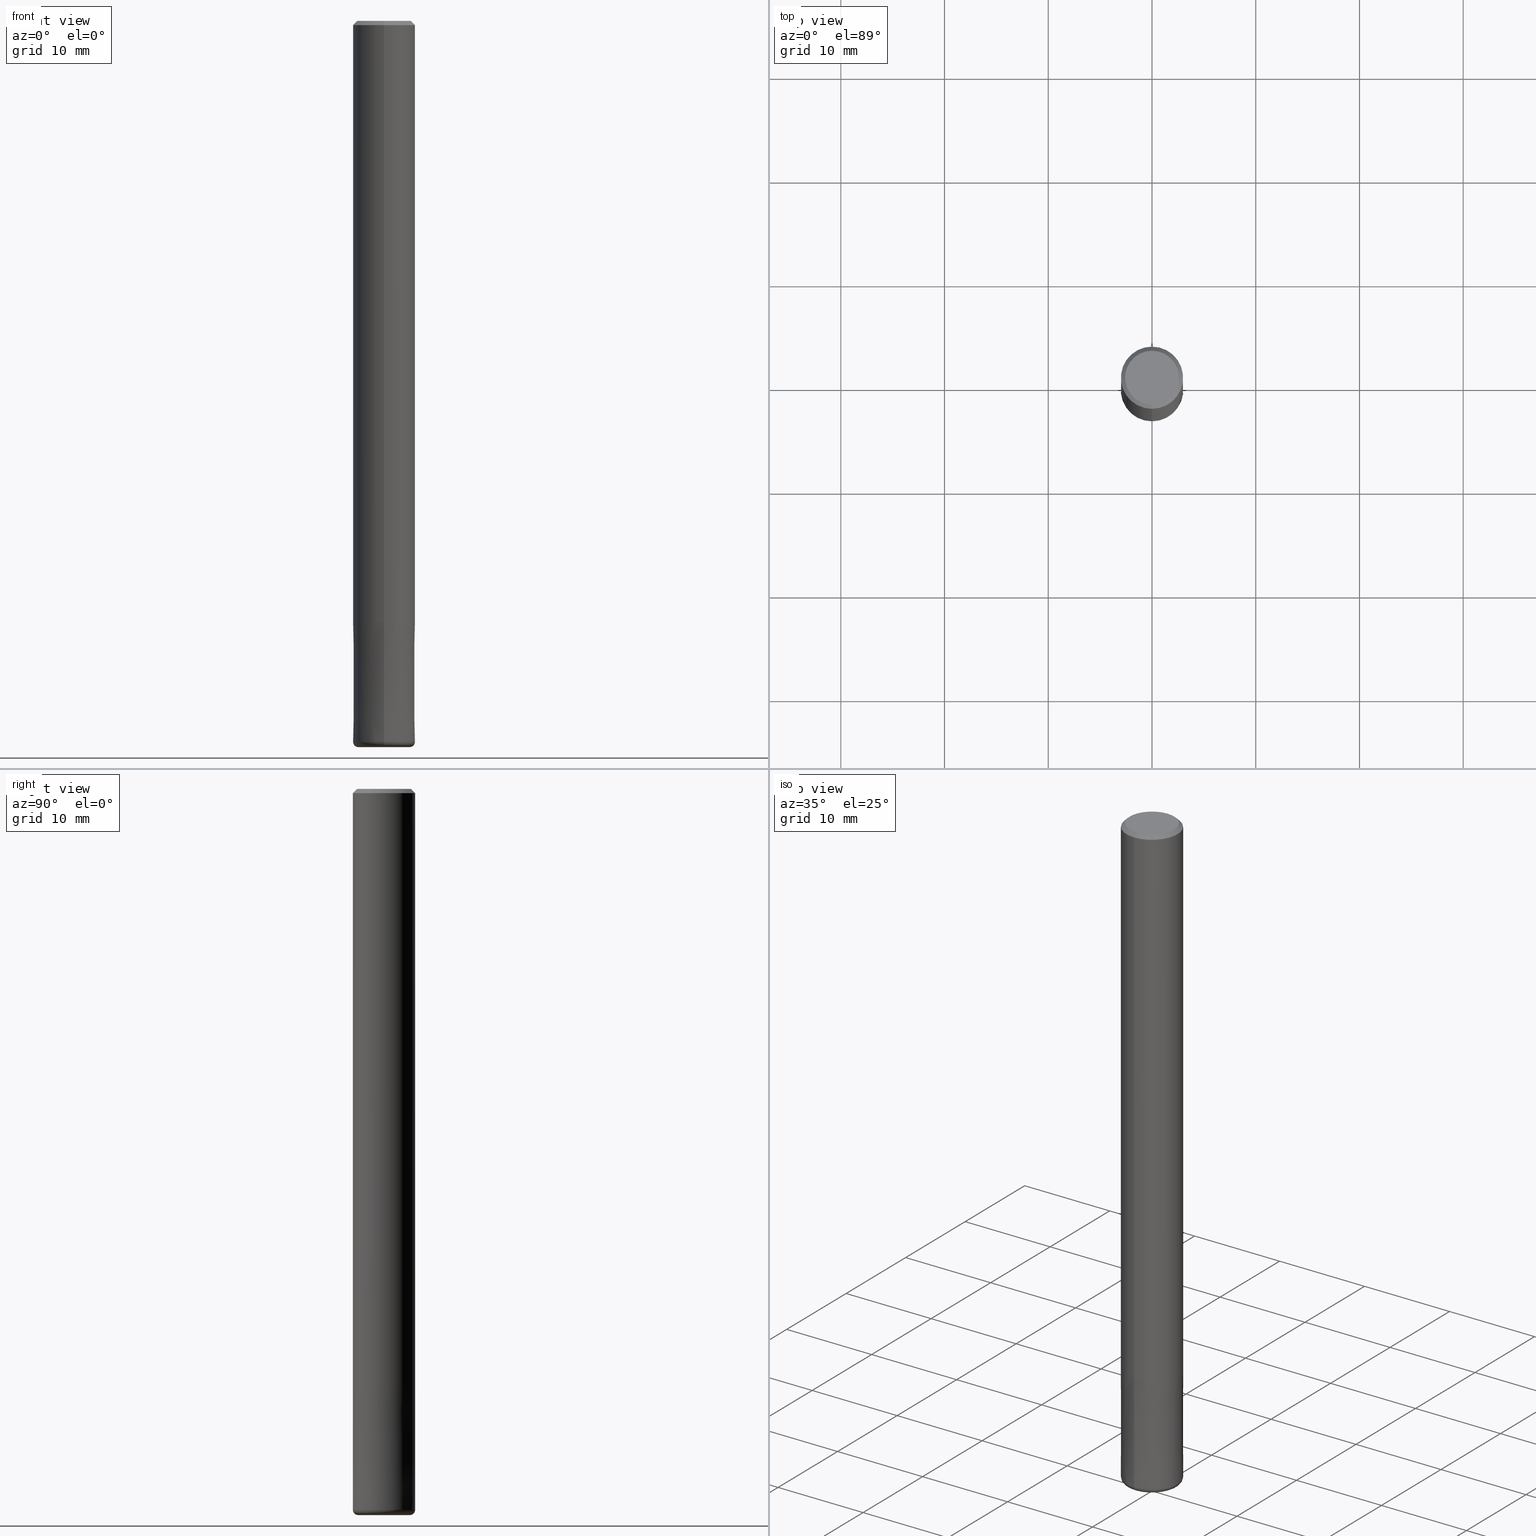
[diagram: canonical four-view strip — front | top / right | iso, engineering-drawing reading convention]
A machine part, canonical four-view strip (front | top / right | iso — engineering-drawing reading convention). The complete STEP part file that produces these views, byte-faithful:
ISO-10303-21;
HEADER;
FILE_DESCRIPTION(('no description'),'unknown implementation level');
FILE_NAME('CXRS5060-05-1200-Huellk.stp','  ',('CIMSOURCE GmbH'),('CADClick - KiM GmbH - www.kimweb.de'),'unknown preprocess','ACIS','unknown authorization');
FILE_SCHEMA(('automotive_design'));
ENDSEC;
DATA;
#1=MECHANICAL_DESIGN_GEOMETRIC_PRESENTATION_REPRESENTATION(' ',(#14,#15,#16,#17,#18,#19,#20,#21,#22,#23,#24,#25,#26,#27,#28,#29,#30,#31,#32,#33,#34,#35,#36,#37,#38,#39,#40,#41,#42,#43,#44,#45,#46,#47,#48,#49,#50,#51,#52,#53,#54,#55,#56,#57,#58,#59,#60,#61,#62,#63,#64,#65,#66,#67,#68,#69,#70,#71,#72,#73,#74,#75,#76,#77,#78,#79,#80,#81,#82,#83,#84),#10);
#2=PRODUCT_DEFINITION_CONTEXT('',#85,'design');
#3=APPLICATION_PROTOCOL_DEFINITION('INTERNATIONAL STANDARD','automotive_design',1994,#85);
#4=PRODUCT_CATEGORY_RELATIONSHIP('NONE','NONE',#86,#87);
#5=SHAPE_DEFINITION_REPRESENTATION(#88,#89);
#6=PRODUCT_DEFINITION_CONTEXT('',#90,'design');
#7=APPLICATION_PROTOCOL_DEFINITION('INTERNATIONAL STANDARD','automotive_design',1994,#90);
#8=PRODUCT_CATEGORY_RELATIONSHIP('NONE','NONE',#91,#92);
#9=SHAPE_DEFINITION_REPRESENTATION(#93,#94);
#10= (GEOMETRIC_REPRESENTATION_CONTEXT(3)GLOBAL_UNCERTAINTY_ASSIGNED_CONTEXT((#97))GLOBAL_UNIT_ASSIGNED_CONTEXT((#99,#100,#101))REPRESENTATION_CONTEXT('NONE','WORKSPACE'));
#14=STYLED_ITEM('',(#103),#104);
#15=STYLED_ITEM('',(#105),#106);
#16=STYLED_ITEM('',(#107),#108);
#17=STYLED_ITEM('',(#109),#110);
#18=STYLED_ITEM('',(#111),#112);
#19=STYLED_ITEM('',(#113),#114);
#20=STYLED_ITEM('',(#115),#116);
#21=STYLED_ITEM('',(#117),#118);
#22=STYLED_ITEM('',(#119),#120);
#23=STYLED_ITEM('',(#121),#122);
#24=STYLED_ITEM('',(#123),#124);
#25=STYLED_ITEM('',(#125),#126);
#26=STYLED_ITEM('',(#127),#128);
#27=STYLED_ITEM('',(#129),#130);
#28=STYLED_ITEM('',(#131),#132);
#29=STYLED_ITEM('',(#133),#134);
#30=STYLED_ITEM('',(#135),#136);
#31=STYLED_ITEM('',(#137),#138);
#32=STYLED_ITEM('',(#139),#140);
#33=STYLED_ITEM('',(#141),#142);
#34=STYLED_ITEM('',(#143),#144);
#35=STYLED_ITEM('',(#145),#146);
#36=STYLED_ITEM('',(#147),#148);
#37=STYLED_ITEM('',(#149),#150);
#38=STYLED_ITEM('',(#151),#152);
#39=STYLED_ITEM('',(#153),#154);
#40=STYLED_ITEM('',(#155),#156);
#41=STYLED_ITEM('',(#157),#158);
#42=STYLED_ITEM('',(#159),#160);
#43=STYLED_ITEM('',(#161),#162);
#44=STYLED_ITEM('',(#163),#164);
#45=STYLED_ITEM('',(#165),#166);
#46=STYLED_ITEM('',(#167),#168);
#47=STYLED_ITEM('',(#169),#170);
#48=STYLED_ITEM('',(#171),#172);
#49=STYLED_ITEM('',(#173),#174);
#50=STYLED_ITEM('',(#175),#176);
#51=STYLED_ITEM('',(#177),#178);
#52=STYLED_ITEM('',(#179),#180);
#53=STYLED_ITEM('',(#181),#182);
#54=STYLED_ITEM('',(#183),#184);
#55=STYLED_ITEM('',(#185),#186);
#56=STYLED_ITEM('',(#187),#188);
#57=STYLED_ITEM('',(#189),#190);
#58=STYLED_ITEM('',(#191),#192);
#59=STYLED_ITEM('',(#193),#194);
#60=STYLED_ITEM('',(#195),#196);
#61=STYLED_ITEM('',(#197),#198);
#62=STYLED_ITEM('',(#199),#200);
#63=STYLED_ITEM('',(#201),#202);
#64=STYLED_ITEM('',(#203),#204);
#65=STYLED_ITEM('',(#205),#206);
#66=STYLED_ITEM('',(#207),#208);
#67=STYLED_ITEM('',(#209),#210);
#68=STYLED_ITEM('',(#211),#212);
#69=STYLED_ITEM('',(#213),#214);
#70=STYLED_ITEM('',(#215),#216);
#71=STYLED_ITEM('',(#217),#218);
#72=STYLED_ITEM('',(#219),#220);
#73=STYLED_ITEM('',(#221),#222);
#74=STYLED_ITEM('',(#223),#224);
#75=STYLED_ITEM('',(#225),#226);
#76=STYLED_ITEM('',(#227),#228);
#77=STYLED_ITEM('',(#229),#230);
#78=STYLED_ITEM('',(#231),#232);
#79=STYLED_ITEM('',(#233),#234);
#80=STYLED_ITEM('',(#235),#236);
#81=STYLED_ITEM('',(#237),#238);
#82=STYLED_ITEM('',(#239),#240);
#83=STYLED_ITEM('',(#241),#242);
#84=STYLED_ITEM('',(#243),#244);
#85=APPLICATION_CONTEXT(' ');
#86=PRODUCT_CATEGORY('part','NONE');
#87=PRODUCT_RELATED_PRODUCT_CATEGORY('detail',' ',(#245));
#88=PRODUCT_DEFINITION_SHAPE('NONE','NONE',#246);
#89=ADVANCED_BREP_SHAPE_REPRESENTATION('1',(#196,#247),#10);
#90=APPLICATION_CONTEXT(' ');
#91=PRODUCT_CATEGORY('part','NONE');
#92=PRODUCT_RELATED_PRODUCT_CATEGORY('detail',' ',(#248));
#93=PRODUCT_DEFINITION_SHAPE('NONE','NONE',#249);
#94=ADVANCED_BREP_SHAPE_REPRESENTATION('2',(#110,#250),#10);
#97=UNCERTAINTY_MEASURE_WITH_UNIT(LENGTH_MEASURE(1.0E-006),#99,'','');
#99= (CONVERSION_BASED_UNIT('MILLIMETRE',#253)LENGTH_UNIT()NAMED_UNIT(#256));
#100= (NAMED_UNIT(#258)PLANE_ANGLE_UNIT()SI_UNIT($,.RADIAN.));
#101= (NAMED_UNIT(#258)SOLID_ANGLE_UNIT()SI_UNIT($,.STERADIAN.));
#103=PRESENTATION_STYLE_ASSIGNMENT((#264));
#104=ADVANCED_FACE('',(#265),#266,.F.);
#105=PRESENTATION_STYLE_ASSIGNMENT((#267));
#106=EDGE_CURVE('',#184,#206,#268,.T.);
#107=PRESENTATION_STYLE_ASSIGNMENT((#269));
#108=ADVANCED_FACE('',(#270),#271,.F.);
#109=PRESENTATION_STYLE_ASSIGNMENT((#272));
#110=MANIFOLD_SOLID_BREP('2',#273);
#111=PRESENTATION_STYLE_ASSIGNMENT((#274));
#112=EDGE_CURVE('',#198,#244,#275,.T.);
#113=PRESENTATION_STYLE_ASSIGNMENT((#276));
#114=EDGE_CURVE('',#188,#168,#277,.T.);
#115=PRESENTATION_STYLE_ASSIGNMENT((#278));
#116=ADVANCED_FACE('',(#279),#280,.T.);
#117=PRESENTATION_STYLE_ASSIGNMENT((#281));
#118=ADVANCED_FACE('',(#282),#283,.T.);
#119=PRESENTATION_STYLE_ASSIGNMENT((#284));
#120=ADVANCED_FACE('',(#285,#286),#287,.T.);
#121=PRESENTATION_STYLE_ASSIGNMENT((#288));
#122=EDGE_CURVE('',#138,#158,#289,.T.);
#123=PRESENTATION_STYLE_ASSIGNMENT((#290));
#124=VERTEX_POINT('',#291);
#125=PRESENTATION_STYLE_ASSIGNMENT((#292));
#126=EDGE_CURVE('',#158,#138,#293,.T.);
#127=PRESENTATION_STYLE_ASSIGNMENT((#294));
#128=EDGE_CURVE('',#206,#198,#295,.T.);
#129=PRESENTATION_STYLE_ASSIGNMENT((#296));
#130=ADVANCED_FACE('',(#297),#298,.T.);
#131=PRESENTATION_STYLE_ASSIGNMENT((#299));
#132=VERTEX_POINT('',#300);
#133=PRESENTATION_STYLE_ASSIGNMENT((#301));
#134=EDGE_CURVE('',#218,#200,#302,.T.);
#135=PRESENTATION_STYLE_ASSIGNMENT((#303));
#136=EDGE_CURVE('',#200,#204,#304,.T.);
#137=PRESENTATION_STYLE_ASSIGNMENT((#305));
#138=VERTEX_POINT('',#306);
#139=PRESENTATION_STYLE_ASSIGNMENT((#307));
#140=VERTEX_POINT('',#308);
#141=PRESENTATION_STYLE_ASSIGNMENT((#309));
#142=VERTEX_POINT('',#310);
#143=PRESENTATION_STYLE_ASSIGNMENT((#311));
#144=EDGE_CURVE('',#124,#208,#312,.T.);
#145=PRESENTATION_STYLE_ASSIGNMENT((#313));
#146=EDGE_CURVE('',#242,#218,#314,.T.);
#147=PRESENTATION_STYLE_ASSIGNMENT((#315));
#148=ADVANCED_FACE('',(#316),#317,.T.);
#149=PRESENTATION_STYLE_ASSIGNMENT((#318));
#150=EDGE_CURVE('',#168,#124,#319,.T.);
#151=PRESENTATION_STYLE_ASSIGNMENT((#320));
#152=EDGE_CURVE('',#184,#222,#321,.T.);
#153=PRESENTATION_STYLE_ASSIGNMENT((#322));
#154=ADVANCED_FACE('',(#323),#324,.T.);
#155=PRESENTATION_STYLE_ASSIGNMENT((#325));
#156=EDGE_CURVE('',#244,#184,#326,.T.);
#157=PRESENTATION_STYLE_ASSIGNMENT((#327));
#158=VERTEX_POINT('',#328);
#159=PRESENTATION_STYLE_ASSIGNMENT((#329));
#160=EDGE_CURVE('',#222,#190,#330,.T.);
#161=PRESENTATION_STYLE_ASSIGNMENT((#331));
#162=EDGE_CURVE('',#138,#140,#332,.T.);
#163=PRESENTATION_STYLE_ASSIGNMENT((#333));
#164=ADVANCED_FACE('',(#334),#335,.T.);
#165=PRESENTATION_STYLE_ASSIGNMENT((#336));
#166=ADVANCED_FACE('',(#337),#338,.T.);
#167=PRESENTATION_STYLE_ASSIGNMENT((#339));
#168=VERTEX_POINT('',#340);
#169=PRESENTATION_STYLE_ASSIGNMENT((#341));
#170=EDGE_CURVE('',#132,#158,#342,.T.);
#171=PRESENTATION_STYLE_ASSIGNMENT((#343));
#172=ADVANCED_FACE('',(#344),#345,.T.);
#173=PRESENTATION_STYLE_ASSIGNMENT((#346));
#174=EDGE_CURVE('',#142,#124,#347,.T.);
#175=PRESENTATION_STYLE_ASSIGNMENT((#348));
#176=EDGE_CURVE('',#140,#132,#349,.T.);
#177=PRESENTATION_STYLE_ASSIGNMENT((#350));
#178=VERTEX_POINT('',#351);
#179=PRESENTATION_STYLE_ASSIGNMENT((#352));
#180=ADVANCED_FACE('',(#353),#354,.T.);
#181=PRESENTATION_STYLE_ASSIGNMENT((#355));
#182=EDGE_CURVE('',#178,#142,#356,.T.);
#183=PRESENTATION_STYLE_ASSIGNMENT((#357));
#184=VERTEX_POINT('',#358);
#185=PRESENTATION_STYLE_ASSIGNMENT((#359));
#186=EDGE_CURVE('',#190,#244,#360,.T.);
#187=PRESENTATION_STYLE_ASSIGNMENT((#361));
#188=VERTEX_POINT('',#362);
#189=PRESENTATION_STYLE_ASSIGNMENT((#363));
#190=VERTEX_POINT('',#364);
#191=PRESENTATION_STYLE_ASSIGNMENT((#365));
#192=ADVANCED_FACE('',(#366),#367,.T.);
#193=PRESENTATION_STYLE_ASSIGNMENT((#368));
#194=EDGE_CURVE('',#200,#218,#369,.T.);
#195=PRESENTATION_STYLE_ASSIGNMENT((#370));
#196=MANIFOLD_SOLID_BREP('1',#371);
#197=PRESENTATION_STYLE_ASSIGNMENT((#372));
#198=VERTEX_POINT('',#373);
#199=PRESENTATION_STYLE_ASSIGNMENT((#374));
#200=VERTEX_POINT('',#375);
#201=PRESENTATION_STYLE_ASSIGNMENT((#376));
#202=EDGE_CURVE('',#184,#244,#377,.T.);
#203=PRESENTATION_STYLE_ASSIGNMENT((#378));
#204=VERTEX_POINT('',#379);
#205=PRESENTATION_STYLE_ASSIGNMENT((#380));
#206=VERTEX_POINT('',#381);
#207=PRESENTATION_STYLE_ASSIGNMENT((#382));
#208=VERTEX_POINT('',#383);
#209=PRESENTATION_STYLE_ASSIGNMENT((#384));
#210=ADVANCED_FACE('',(#385,#386),#387,.T.);
#211=PRESENTATION_STYLE_ASSIGNMENT((#388));
#212=EDGE_CURVE('',#208,#178,#389,.T.);
#213=PRESENTATION_STYLE_ASSIGNMENT((#390));
#214=EDGE_CURVE('',#198,#206,#391,.T.);
#215=PRESENTATION_STYLE_ASSIGNMENT((#392));
#216=EDGE_CURVE('',#132,#140,#393,.T.);
#217=PRESENTATION_STYLE_ASSIGNMENT((#394));
#218=VERTEX_POINT('',#395);
#219=PRESENTATION_STYLE_ASSIGNMENT((#396));
#220=ADVANCED_FACE('',(#397),#398,.T.);
#221=PRESENTATION_STYLE_ASSIGNMENT((#399));
#222=VERTEX_POINT('',#400);
#223=PRESENTATION_STYLE_ASSIGNMENT((#401));
#224=EDGE_CURVE('',#142,#188,#402,.T.);
#225=PRESENTATION_STYLE_ASSIGNMENT((#403));
#226=ADVANCED_FACE('',(#404,#405),#406,.T.);
#227=PRESENTATION_STYLE_ASSIGNMENT((#407));
#228=EDGE_CURVE('',#190,#222,#408,.T.);
#229=PRESENTATION_STYLE_ASSIGNMENT((#409));
#230=EDGE_CURVE('',#242,#204,#410,.T.);
#231=PRESENTATION_STYLE_ASSIGNMENT((#411));
#232=EDGE_CURVE('',#178,#208,#412,.T.);
#233=PRESENTATION_STYLE_ASSIGNMENT((#413));
#234=ADVANCED_FACE('',(#414),#415,.T.);
#235=PRESENTATION_STYLE_ASSIGNMENT((#416));
#236=EDGE_CURVE('',#124,#142,#417,.T.);
#237=PRESENTATION_STYLE_ASSIGNMENT((#418));
#238=EDGE_CURVE('',#168,#188,#419,.T.);
#239=PRESENTATION_STYLE_ASSIGNMENT((#420));
#240=EDGE_CURVE('',#204,#242,#421,.T.);
#241=PRESENTATION_STYLE_ASSIGNMENT((#422));
#242=VERTEX_POINT('',#423);
#243=PRESENTATION_STYLE_ASSIGNMENT((#424));
#244=VERTEX_POINT('',#425);
#245=PRODUCT('1','1','PART-1-DESC',(#426));
#246=PRODUCT_DEFINITION('NONE','NONE',#427,#2);
#247=AXIS2_PLACEMENT_3D('',#428,#429,#430);
#248=PRODUCT('2','2','PART-2-DESC',(#431));
#249=PRODUCT_DEFINITION('NONE','NONE',#432,#6);
#250=AXIS2_PLACEMENT_3D('',#433,#434,#435);
#253=LENGTH_MEASURE_WITH_UNIT(LENGTH_MEASURE(1.0),#436);
#256=DIMENSIONAL_EXPONENTS(1.0,0.0,0.0,0.0,0.0,0.0,0.0);
#258=DIMENSIONAL_EXPONENTS(0.0,0.0,0.0,0.0,0.0,0.0,0.0);
#264=SURFACE_STYLE_USAGE(.BOTH.,#437);
#265=FACE_OUTER_BOUND('',#438,.T.);
#266=CYLINDRICAL_SURFACE('',#439,1.35);
#267=CURVE_STYLE('',#440,POSITIVE_LENGTH_MEASURE(1.0E-006),#441);
#268=LINE('',#442,#443);
#269=SURFACE_STYLE_USAGE(.BOTH.,#444);
#270=FACE_OUTER_BOUND('',#445,.T.);
#271=CYLINDRICAL_SURFACE('',#446,1.35);
#272=SURFACE_STYLE_USAGE(.BOTH.,#447);
#273=CLOSED_SHELL('',(#104,#172,#234,#226,#180,#116,#120,#108));
#274=CURVE_STYLE('',#448,POSITIVE_LENGTH_MEASURE(1.0E-006),#449);
#275=LINE('',#450,#451);
#276=CURVE_STYLE('',#452,POSITIVE_LENGTH_MEASURE(1.0E-006),#453);
#277=CIRCLE('',#454,2.6);
#278=SURFACE_STYLE_USAGE(.BOTH.,#455);
#279=FACE_OUTER_BOUND('',#456,.T.);
#280=TOROIDAL_SURFACE('',#457,2.5,0.499999999999995);
#281=SURFACE_STYLE_USAGE(.BOTH.,#458);
#282=FACE_OUTER_BOUND('',#459,.T.);
#283=CYLINDRICAL_SURFACE('',#460,3.0);
#284=SURFACE_STYLE_USAGE(.BOTH.,#461);
#285=FACE_BOUND('',#462,.T.);
#286=FACE_OUTER_BOUND('',#463,.T.);
#287=PLANE('',#464);
#288=CURVE_STYLE('',#465,POSITIVE_LENGTH_MEASURE(1.0E-006),#466);
#289=CIRCLE('',#467,1.35);
#290=POINT_STYLE(' ',#468,POSITIVE_LENGTH_MEASURE(1.0E-006),#469);
#291=CARTESIAN_POINT('',(0.0,3.0,-0.399999999999999));
#292=CURVE_STYLE('',#470,POSITIVE_LENGTH_MEASURE(1.0E-006),#471);
#293=CIRCLE('',#472,1.35);
#294=CURVE_STYLE('',#473,POSITIVE_LENGTH_MEASURE(1.0E-006),#474);
#295=CIRCLE('',#475,2.9999);
#296=SURFACE_STYLE_USAGE(.BOTH.,#476);
#297=FACE_OUTER_BOUND('',#477,.T.);
#298=CYLINDRICAL_SURFACE('',#478,1.35);
#299=POINT_STYLE(' ',#479,POSITIVE_LENGTH_MEASURE(1.0E-006),#480);
#300=CARTESIAN_POINT('',(0.0,1.35,-58.0));
#301=CURVE_STYLE('',#481,POSITIVE_LENGTH_MEASURE(1.0E-006),#482);
#302=CIRCLE('',#483,1.35);
#303=CURVE_STYLE('',#484,POSITIVE_LENGTH_MEASURE(1.0E-006),#485);
#304=LINE('',#486,#487);
#305=POINT_STYLE(' ',#488,POSITIVE_LENGTH_MEASURE(1.0E-006),#489);
#306=CARTESIAN_POINT('',(1.65321857766021E-016,-1.35,-70.0));
#307=POINT_STYLE(' ',#490,POSITIVE_LENGTH_MEASURE(1.0E-006),#491);
#308=CARTESIAN_POINT('',(1.65321857766021E-016,-1.35,-58.0));
#309=POINT_STYLE(' ',#492,POSITIVE_LENGTH_MEASURE(1.0E-006),#493);
#310=CARTESIAN_POINT('',(3.67381906146713E-016,-3.0,-0.399999999999999));
#311=CURVE_STYLE('',#494,POSITIVE_LENGTH_MEASURE(1.0E-006),#495);
#312=LINE('',#496,#497);
#313=CURVE_STYLE('',#498,POSITIVE_LENGTH_MEASURE(1.0E-006),#499);
#314=LINE('',#500,#501);
#315=SURFACE_STYLE_USAGE(.BOTH.,#502);
#316=FACE_OUTER_BOUND('',#503,.T.);
#317=CYLINDRICAL_SURFACE('',#504,1.35);
#318=CURVE_STYLE('',#505,POSITIVE_LENGTH_MEASURE(1.0E-006),#506);
#319=LINE('',#507,#508);
#320=CURVE_STYLE('',#509,POSITIVE_LENGTH_MEASURE(1.0E-006),#510);
#321=CIRCLE('',#511,0.499999999999995);
#322=SURFACE_STYLE_USAGE(.BOTH.,#512);
#323=FACE_OUTER_BOUND('',#513,.T.);
#324=CYLINDRICAL_SURFACE('',#514,3.0);
#325=CURVE_STYLE('',#515,POSITIVE_LENGTH_MEASURE(1.0E-006),#516);
#326=CIRCLE('',#517,3.0);
#327=POINT_STYLE(' ',#518,POSITIVE_LENGTH_MEASURE(1.0E-006),#519);
#328=CARTESIAN_POINT('',(0.0,1.35,-70.0));
#329=CURVE_STYLE('',#520,POSITIVE_LENGTH_MEASURE(1.0E-006),#521);
#330=CIRCLE('',#522,2.5);
#331=CURVE_STYLE('',#523,POSITIVE_LENGTH_MEASURE(1.0E-006),#524);
#332=LINE('',#525,#526);
#333=SURFACE_STYLE_USAGE(.BOTH.,#527);
#334=FACE_OUTER_BOUND('',#528,.T.);
#335=PLANE('',#529);
#336=SURFACE_STYLE_USAGE(.BOTH.,#530);
#337=FACE_OUTER_BOUND('',#531,.T.);
#338=CONICAL_SURFACE('',#532,2.8,0.78539816339745);
#339=POINT_STYLE(' ',#533,POSITIVE_LENGTH_MEASURE(1.0E-006),#534);
#340=CARTESIAN_POINT('',(0.0,2.6,0.0));
#341=CURVE_STYLE('',#535,POSITIVE_LENGTH_MEASURE(1.0E-006),#536);
#342=LINE('',#537,#538);
#343=SURFACE_STYLE_USAGE(.BOTH.,#539);
#344=FACE_OUTER_BOUND('',#540,.T.);
#345=TOROIDAL_SURFACE('',#541,2.5,0.499999999999995);
#346=CURVE_STYLE('',#542,POSITIVE_LENGTH_MEASURE(1.0E-006),#543);
#347=CIRCLE('',#544,3.0);
#348=CURVE_STYLE('',#545,POSITIVE_LENGTH_MEASURE(1.0E-006),#546);
#349=CIRCLE('',#547,1.35);
#350=POINT_STYLE(' ',#548,POSITIVE_LENGTH_MEASURE(1.0E-006),#549);
#351=CARTESIAN_POINT('',(3.67381906146713E-016,-3.0,-58.0));
#352=SURFACE_STYLE_USAGE(.BOTH.,#550);
#353=FACE_OUTER_BOUND('',#551,.T.);
#354=CONICAL_SURFACE('',#552,2.99995,8.69565217371222E-006);
#355=CURVE_STYLE('',#553,POSITIVE_LENGTH_MEASURE(1.0E-006),#554);
#356=LINE('',#555,#556);
#357=POINT_STYLE(' ',#557,POSITIVE_LENGTH_MEASURE(1.0E-006),#558);
#358=CARTESIAN_POINT('',(3.67381906146713E-016,-3.0,-69.5));
#359=CURVE_STYLE('',#559,POSITIVE_LENGTH_MEASURE(1.0E-006),#560);
#360=CIRCLE('',#561,0.499999999999995);
#361=POINT_STYLE(' ',#562,POSITIVE_LENGTH_MEASURE(1.0E-006),#563);
#362=CARTESIAN_POINT('',(3.18397651993818E-016,-2.6,0.0));
#363=POINT_STYLE(' ',#564,POSITIVE_LENGTH_MEASURE(1.0E-006),#565);
#364=CARTESIAN_POINT('',(0.0,2.5,-70.0));
#365=SURFACE_STYLE_USAGE(.BOTH.,#566);
#366=FACE_OUTER_BOUND('',#567,.T.);
#367=PLANE('',#568);
#368=CURVE_STYLE('',#569,POSITIVE_LENGTH_MEASURE(1.0E-006),#570);
#369=CIRCLE('',#571,1.35);
#370=SURFACE_STYLE_USAGE(.BOTH.,#572);
#371=CLOSED_SHELL('',(#130,#154,#220,#210,#164,#166,#118,#148,#192));
#372=POINT_STYLE(' ',#573,POSITIVE_LENGTH_MEASURE(1.0E-006),#574);
#373=CARTESIAN_POINT('',(0.0,2.9999,-58.0));
#374=POINT_STYLE(' ',#575,POSITIVE_LENGTH_MEASURE(1.0E-006),#576);
#375=CARTESIAN_POINT('',(1.65321857766021E-016,-1.35,-69.9));
#376=CURVE_STYLE('',#577,POSITIVE_LENGTH_MEASURE(1.0E-006),#578);
#377=CIRCLE('',#579,3.0);
#378=POINT_STYLE(' ',#580,POSITIVE_LENGTH_MEASURE(1.0E-006),#581);
#379=CARTESIAN_POINT('',(1.65321857766021E-016,-1.35,-58.0));
#380=POINT_STYLE(' ',#582,POSITIVE_LENGTH_MEASURE(1.0E-006),#583);
#381=CARTESIAN_POINT('',(3.67369660083175E-016,-2.9999,-58.0));
#382=POINT_STYLE(' ',#584,POSITIVE_LENGTH_MEASURE(1.0E-006),#585);
#383=CARTESIAN_POINT('',(0.0,3.0,-58.0));
#384=SURFACE_STYLE_USAGE(.BOTH.,#586);
#385=FACE_OUTER_BOUND('',#587,.T.);
#386=FACE_BOUND('',#588,.T.);
#387=PLANE('',#589);
#388=CURVE_STYLE('',#590,POSITIVE_LENGTH_MEASURE(1.0E-006),#591);
#389=CIRCLE('',#592,3.0);
#390=CURVE_STYLE('',#593,POSITIVE_LENGTH_MEASURE(1.0E-006),#594);
#391=CIRCLE('',#595,2.9999);
#392=CURVE_STYLE('',#596,POSITIVE_LENGTH_MEASURE(1.0E-006),#597);
#393=CIRCLE('',#598,1.35);
#394=POINT_STYLE(' ',#599,POSITIVE_LENGTH_MEASURE(1.0E-006),#600);
#395=CARTESIAN_POINT('',(0.0,1.35,-69.9));
#396=SURFACE_STYLE_USAGE(.BOTH.,#601);
#397=FACE_OUTER_BOUND('',#602,.T.);
#398=CONICAL_SURFACE('',#603,2.8,0.78539816339745);
#399=POINT_STYLE(' ',#604,POSITIVE_LENGTH_MEASURE(1.0E-006),#605);
#400=CARTESIAN_POINT('',(3.06151588455594E-016,-2.5,-70.0));
#401=CURVE_STYLE('',#606,POSITIVE_LENGTH_MEASURE(1.0E-006),#607);
#402=LINE('',#608,#609);
#403=SURFACE_STYLE_USAGE(.BOTH.,#610);
#404=FACE_OUTER_BOUND('',#611,.T.);
#405=FACE_BOUND('',#612,.T.);
#406=PLANE('',#613);
#407=CURVE_STYLE('',#614,POSITIVE_LENGTH_MEASURE(1.0E-006),#615);
#408=CIRCLE('',#616,2.5);
#409=CURVE_STYLE('',#617,POSITIVE_LENGTH_MEASURE(1.0E-006),#618);
#410=CIRCLE('',#619,1.35);
#411=CURVE_STYLE('',#620,POSITIVE_LENGTH_MEASURE(1.0E-006),#621);
#412=CIRCLE('',#622,3.0);
#413=SURFACE_STYLE_USAGE(.BOTH.,#623);
#414=FACE_OUTER_BOUND('',#624,.T.);
#415=CONICAL_SURFACE('',#625,2.99995,8.69565217371222E-006);
#416=CURVE_STYLE('',#626,POSITIVE_LENGTH_MEASURE(1.0E-006),#627);
#417=CIRCLE('',#628,3.0);
#418=CURVE_STYLE('',#629,POSITIVE_LENGTH_MEASURE(1.0E-006),#630);
#419=CIRCLE('',#631,2.6);
#420=CURVE_STYLE('',#632,POSITIVE_LENGTH_MEASURE(1.0E-006),#633);
#421=CIRCLE('',#634,1.35);
#422=POINT_STYLE(' ',#635,POSITIVE_LENGTH_MEASURE(1.0E-006),#636);
#423=CARTESIAN_POINT('',(0.0,1.35,-58.0));
#424=POINT_STYLE(' ',#637,POSITIVE_LENGTH_MEASURE(1.0E-006),#638);
#425=CARTESIAN_POINT('',(0.0,3.0,-69.5));
#426=PRODUCT_CONTEXT('',#85,'mechanical');
#427=PRODUCT_DEFINITION_FORMATION_WITH_SPECIFIED_SOURCE(' ','NONE',#245,.NOT_KNOWN.);
#428=CARTESIAN_POINT('',(0.0,0.0,0.0));
#429=DIRECTION('',(0.0,0.0,1.0));
#430=DIRECTION('',(1.0,0.0,0.0));
#431=PRODUCT_CONTEXT('',#90,'mechanical');
#432=PRODUCT_DEFINITION_FORMATION_WITH_SPECIFIED_SOURCE(' ','NONE',#248,.NOT_KNOWN.);
#433=CARTESIAN_POINT('',(0.0,0.0,0.0));
#434=DIRECTION('',(0.0,0.0,1.0));
#435=DIRECTION('',(1.0,0.0,0.0));
#436= (NAMED_UNIT(#256)LENGTH_UNIT()SI_UNIT(.MILLI.,.METRE.));
#437=SURFACE_SIDE_STYLE('',(#640));
#438=EDGE_LOOP('',(#641,#642,#643,#644));
#439=AXIS2_PLACEMENT_3D('',#645,#646,#647);
#440=DRAUGHTING_PRE_DEFINED_CURVE_FONT('continuous');
#441=COLOUR_RGB('',0.800000011920929,0.800000011920929,0.800000011920929);
#442=CARTESIAN_POINT('',(3.67375783114944E-016,-2.99995,-63.75));
#443=VECTOR('',#648,1.0);
#444=SURFACE_SIDE_STYLE('',(#649));
#445=EDGE_LOOP('',(#650,#651,#652,#653));
#446=AXIS2_PLACEMENT_3D('',#654,#655,#656);
#447=SURFACE_SIDE_STYLE('',(#657));
#448=DRAUGHTING_PRE_DEFINED_CURVE_FONT('continuous');
#449=COLOUR_RGB('',0.800000011920929,0.800000011920929,0.800000011920929);
#450=CARTESIAN_POINT('',(-3.67375783114944E-016,2.99995,-63.75));
#451=VECTOR('',#658,1.0);
#452=DRAUGHTING_PRE_DEFINED_CURVE_FONT('continuous');
#453=COLOUR_RGB('',0.498039215803146,0.498039215803146,0.498039215803146);
#454=AXIS2_PLACEMENT_3D('',#659,#660,#661);
#455=SURFACE_SIDE_STYLE('',(#662));
#456=EDGE_LOOP('',(#663,#664,#665,#666));
#457=AXIS2_PLACEMENT_3D('',#667,#668,#669);
#458=SURFACE_SIDE_STYLE('',(#670));
#459=EDGE_LOOP('',(#671,#672,#673,#674));
#460=AXIS2_PLACEMENT_3D('',#675,#676,#677);
#461=SURFACE_SIDE_STYLE('',(#678));
#462=EDGE_LOOP('',(#679,#680));
#463=EDGE_LOOP('',(#681,#682));
#464=AXIS2_PLACEMENT_3D('',#683,#684,#685);
#465=DRAUGHTING_PRE_DEFINED_CURVE_FONT('continuous');
#466=COLOUR_RGB('',0.800000011920929,0.800000011920929,0.800000011920929);
#467=AXIS2_PLACEMENT_3D('',#686,#687,#688);
#468=PRE_DEFINED_MARKER('');
#469=COLOUR_RGB('',0.498039215803146,0.498039215803146,0.498039215803146);
#470=DRAUGHTING_PRE_DEFINED_CURVE_FONT('continuous');
#471=COLOUR_RGB('',0.800000011920929,0.800000011920929,0.800000011920929);
#472=AXIS2_PLACEMENT_3D('',#689,#690,#691);
#473=DRAUGHTING_PRE_DEFINED_CURVE_FONT('continuous');
#474=COLOUR_RGB('',0.800000011920929,0.800000011920929,0.800000011920929);
#475=AXIS2_PLACEMENT_3D('',#692,#693,#694);
#476=SURFACE_SIDE_STYLE('',(#695));
#477=EDGE_LOOP('',(#696,#697,#698,#699));
#478=AXIS2_PLACEMENT_3D('',#700,#701,#702);
#479=PRE_DEFINED_MARKER('');
#480=COLOUR_RGB('',0.800000011920929,0.800000011920929,0.800000011920929);
#481=DRAUGHTING_PRE_DEFINED_CURVE_FONT('continuous');
#482=COLOUR_RGB('',0.498039215803146,0.498039215803146,0.498039215803146);
#483=AXIS2_PLACEMENT_3D('',#703,#704,#705);
#484=DRAUGHTING_PRE_DEFINED_CURVE_FONT('continuous');
#485=COLOUR_RGB('',0.498039215803146,0.498039215803146,0.498039215803146);
#486=CARTESIAN_POINT('',(1.65321857766021E-016,-1.35,-63.95));
#487=VECTOR('',#706,1.0);
#488=PRE_DEFINED_MARKER('');
#489=COLOUR_RGB('',0.800000011920929,0.800000011920929,0.800000011920929);
#490=PRE_DEFINED_MARKER('');
#491=COLOUR_RGB('',0.800000011920929,0.800000011920929,0.800000011920929);
#492=PRE_DEFINED_MARKER('');
#493=COLOUR_RGB('',0.498039215803146,0.498039215803146,0.498039215803146);
#494=DRAUGHTING_PRE_DEFINED_CURVE_FONT('continuous');
#495=COLOUR_RGB('',0.498039215803146,0.498039215803146,0.498039215803146);
#496=CARTESIAN_POINT('',(-3.67381906146713E-016,3.0,-29.2));
#497=VECTOR('',#707,1.0);
#498=DRAUGHTING_PRE_DEFINED_CURVE_FONT('continuous');
#499=COLOUR_RGB('',0.498039215803146,0.498039215803146,0.498039215803146);
#500=CARTESIAN_POINT('',(-1.65321857766021E-016,1.35,-63.95));
#501=VECTOR('',#708,1.0);
#502=SURFACE_SIDE_STYLE('',(#709));
#503=EDGE_LOOP('',(#710,#711,#712,#713));
#504=AXIS2_PLACEMENT_3D('',#714,#715,#716);
#505=DRAUGHTING_PRE_DEFINED_CURVE_FONT('continuous');
#506=COLOUR_RGB('',0.498039215803146,0.498039215803146,0.498039215803146);
#507=CARTESIAN_POINT('',(-3.42889779070266E-016,2.8,-0.200000000000003));
#508=VECTOR('',#717,1.0);
#509=DRAUGHTING_PRE_DEFINED_CURVE_FONT('continuous');
#510=COLOUR_RGB('',0.800000011920929,0.800000011920929,0.800000011920929);
#511=AXIS2_PLACEMENT_3D('',#718,#719,#720);
#512=SURFACE_SIDE_STYLE('',(#721));
#513=EDGE_LOOP('',(#722,#723,#724,#725));
#514=AXIS2_PLACEMENT_3D('',#726,#727,#728);
#515=DRAUGHTING_PRE_DEFINED_CURVE_FONT('continuous');
#516=COLOUR_RGB('',0.800000011920929,0.800000011920929,0.800000011920929);
#517=AXIS2_PLACEMENT_3D('',#729,#730,#731);
#518=PRE_DEFINED_MARKER('');
#519=COLOUR_RGB('',0.800000011920929,0.800000011920929,0.800000011920929);
#520=DRAUGHTING_PRE_DEFINED_CURVE_FONT('continuous');
#521=COLOUR_RGB('',0.800000011920929,0.800000011920929,0.800000011920929);
#522=AXIS2_PLACEMENT_3D('',#732,#733,#734);
#523=DRAUGHTING_PRE_DEFINED_CURVE_FONT('continuous');
#524=COLOUR_RGB('',0.800000011920929,0.800000011920929,0.800000011920929);
#525=CARTESIAN_POINT('',(1.65321857766021E-016,-1.35,-64.0));
#526=VECTOR('',#735,1.0);
#527=SURFACE_SIDE_STYLE('',(#736));
#528=EDGE_LOOP('',(#737,#738));
#529=AXIS2_PLACEMENT_3D('',#739,#740,#741);
#530=SURFACE_SIDE_STYLE('',(#742));
#531=EDGE_LOOP('',(#743,#744,#745,#746));
#532=AXIS2_PLACEMENT_3D('',#747,#748,#749);
#533=PRE_DEFINED_MARKER('');
#534=COLOUR_RGB('',0.498039215803146,0.498039215803146,0.498039215803146);
#535=DRAUGHTING_PRE_DEFINED_CURVE_FONT('continuous');
#536=COLOUR_RGB('',0.800000011920929,0.800000011920929,0.800000011920929);
#537=CARTESIAN_POINT('',(-1.65321857766021E-016,1.35,-64.0));
#538=VECTOR('',#750,1.0);
#539=SURFACE_SIDE_STYLE('',(#751));
#540=EDGE_LOOP('',(#752,#753,#754,#755));
#541=AXIS2_PLACEMENT_3D('',#756,#757,#758);
#542=DRAUGHTING_PRE_DEFINED_CURVE_FONT('continuous');
#543=COLOUR_RGB('',0.498039215803146,0.498039215803146,0.498039215803146);
#544=AXIS2_PLACEMENT_3D('',#759,#760,#761);
#545=DRAUGHTING_PRE_DEFINED_CURVE_FONT('continuous');
#546=COLOUR_RGB('',0.800000011920929,0.800000011920929,0.800000011920929);
#547=AXIS2_PLACEMENT_3D('',#762,#763,#764);
#548=PRE_DEFINED_MARKER('');
#549=COLOUR_RGB('',0.498039215803146,0.498039215803146,0.498039215803146);
#550=SURFACE_SIDE_STYLE('',(#765));
#551=EDGE_LOOP('',(#766,#767,#768,#769));
#552=AXIS2_PLACEMENT_3D('',#770,#771,#772);
#553=DRAUGHTING_PRE_DEFINED_CURVE_FONT('continuous');
#554=COLOUR_RGB('',0.498039215803146,0.498039215803146,0.498039215803146);
#555=CARTESIAN_POINT('',(3.67381906146713E-016,-3.0,-29.2));
#556=VECTOR('',#773,1.0);
#557=PRE_DEFINED_MARKER('');
#558=COLOUR_RGB('',0.800000011920929,0.800000011920929,0.800000011920929);
#559=DRAUGHTING_PRE_DEFINED_CURVE_FONT('continuous');
#560=COLOUR_RGB('',0.800000011920929,0.800000011920929,0.800000011920929);
#561=AXIS2_PLACEMENT_3D('',#774,#775,#776);
#562=PRE_DEFINED_MARKER('');
#563=COLOUR_RGB('',0.498039215803146,0.498039215803146,0.498039215803146);
#564=PRE_DEFINED_MARKER('');
#565=COLOUR_RGB('',0.800000011920929,0.800000011920929,0.800000011920929);
#566=SURFACE_SIDE_STYLE('',(#777));
#567=EDGE_LOOP('',(#778,#779));
#568=AXIS2_PLACEMENT_3D('',#780,#781,#782);
#569=DRAUGHTING_PRE_DEFINED_CURVE_FONT('continuous');
#570=COLOUR_RGB('',0.498039215803146,0.498039215803146,0.498039215803146);
#571=AXIS2_PLACEMENT_3D('',#783,#784,#785);
#572=SURFACE_SIDE_STYLE('',(#786));
#573=PRE_DEFINED_MARKER('');
#574=COLOUR_RGB('',0.800000011920929,0.800000011920929,0.800000011920929);
#575=PRE_DEFINED_MARKER('');
#576=COLOUR_RGB('',0.498039215803146,0.498039215803146,0.498039215803146);
#577=DRAUGHTING_PRE_DEFINED_CURVE_FONT('continuous');
#578=COLOUR_RGB('',0.800000011920929,0.800000011920929,0.800000011920929);
#579=AXIS2_PLACEMENT_3D('',#787,#788,#789);
#580=PRE_DEFINED_MARKER('');
#581=COLOUR_RGB('',0.498039215803146,0.498039215803146,0.498039215803146);
#582=PRE_DEFINED_MARKER('');
#583=COLOUR_RGB('',0.800000011920929,0.800000011920929,0.800000011920929);
#584=PRE_DEFINED_MARKER('');
#585=COLOUR_RGB('',0.498039215803146,0.498039215803146,0.498039215803146);
#586=SURFACE_SIDE_STYLE('',(#790));
#587=EDGE_LOOP('',(#791,#792));
#588=EDGE_LOOP('',(#793,#794));
#589=AXIS2_PLACEMENT_3D('',#795,#796,#797);
#590=DRAUGHTING_PRE_DEFINED_CURVE_FONT('continuous');
#591=COLOUR_RGB('',0.498039215803146,0.498039215803146,0.498039215803146);
#592=AXIS2_PLACEMENT_3D('',#798,#799,#800);
#593=DRAUGHTING_PRE_DEFINED_CURVE_FONT('continuous');
#594=COLOUR_RGB('',0.800000011920929,0.800000011920929,0.800000011920929);
#595=AXIS2_PLACEMENT_3D('',#801,#802,#803);
#596=DRAUGHTING_PRE_DEFINED_CURVE_FONT('continuous');
#597=COLOUR_RGB('',0.800000011920929,0.800000011920929,0.800000011920929);
#598=AXIS2_PLACEMENT_3D('',#804,#805,#806);
#599=PRE_DEFINED_MARKER('');
#600=COLOUR_RGB('',0.498039215803146,0.498039215803146,0.498039215803146);
#601=SURFACE_SIDE_STYLE('',(#807));
#602=EDGE_LOOP('',(#808,#809,#810,#811));
#603=AXIS2_PLACEMENT_3D('',#812,#813,#814);
#604=PRE_DEFINED_MARKER('');
#605=COLOUR_RGB('',0.800000011920929,0.800000011920929,0.800000011920929);
#606=DRAUGHTING_PRE_DEFINED_CURVE_FONT('continuous');
#607=COLOUR_RGB('',0.498039215803146,0.498039215803146,0.498039215803146);
#608=CARTESIAN_POINT('',(3.42889779070266E-016,-2.8,-0.200000000000003));
#609=VECTOR('',#815,1.0);
#610=SURFACE_SIDE_STYLE('',(#816));
#611=EDGE_LOOP('',(#817,#818));
#612=EDGE_LOOP('',(#819,#820));
#613=AXIS2_PLACEMENT_3D('',#821,#822,#823);
#614=DRAUGHTING_PRE_DEFINED_CURVE_FONT('continuous');
#615=COLOUR_RGB('',0.800000011920929,0.800000011920929,0.800000011920929);
#616=AXIS2_PLACEMENT_3D('',#824,#825,#826);
#617=DRAUGHTING_PRE_DEFINED_CURVE_FONT('continuous');
#618=COLOUR_RGB('',0.498039215803146,0.498039215803146,0.498039215803146);
#619=AXIS2_PLACEMENT_3D('',#827,#828,#829);
#620=DRAUGHTING_PRE_DEFINED_CURVE_FONT('continuous');
#621=COLOUR_RGB('',0.498039215803146,0.498039215803146,0.498039215803146);
#622=AXIS2_PLACEMENT_3D('',#830,#831,#832);
#623=SURFACE_SIDE_STYLE('',(#833));
#624=EDGE_LOOP('',(#834,#835,#836,#837));
#625=AXIS2_PLACEMENT_3D('',#838,#839,#840);
#626=DRAUGHTING_PRE_DEFINED_CURVE_FONT('continuous');
#627=COLOUR_RGB('',0.498039215803146,0.498039215803146,0.498039215803146);
#628=AXIS2_PLACEMENT_3D('',#841,#842,#843);
#629=DRAUGHTING_PRE_DEFINED_CURVE_FONT('continuous');
#630=COLOUR_RGB('',0.498039215803146,0.498039215803146,0.498039215803146);
#631=AXIS2_PLACEMENT_3D('',#844,#845,#846);
#632=DRAUGHTING_PRE_DEFINED_CURVE_FONT('continuous');
#633=COLOUR_RGB('',0.498039215803146,0.498039215803146,0.498039215803146);
#634=AXIS2_PLACEMENT_3D('',#847,#848,#849);
#635=PRE_DEFINED_MARKER('');
#636=COLOUR_RGB('',0.498039215803146,0.498039215803146,0.498039215803146);
#637=PRE_DEFINED_MARKER('');
#638=COLOUR_RGB('',0.800000011920929,0.800000011920929,0.800000011920929);
#640=SURFACE_STYLE_FILL_AREA(#850);
#641=ORIENTED_EDGE('',*,*,#170,.F.);
#642=ORIENTED_EDGE('',*,*,#176,.F.);
#643=ORIENTED_EDGE('',*,*,#162,.F.);
#644=ORIENTED_EDGE('',*,*,#122,.T.);
#645=CARTESIAN_POINT('',(0.0,0.0,-64.0));
#646=DIRECTION('',(-0.0,-0.0,1.0));
#647=DIRECTION('',(0.0,1.0,0.0));
#648=DIRECTION('',(-1.06487509024232E-021,8.69565217360264E-006,0.999999999962193));
#649=SURFACE_STYLE_FILL_AREA(#851);
#650=ORIENTED_EDGE('',*,*,#170,.T.);
#651=ORIENTED_EDGE('',*,*,#126,.T.);
#652=ORIENTED_EDGE('',*,*,#162,.T.);
#653=ORIENTED_EDGE('',*,*,#216,.F.);
#654=CARTESIAN_POINT('',(0.0,0.0,-64.0));
#655=DIRECTION('',(-0.0,-0.0,1.0));
#656=DIRECTION('',(0.0,1.0,0.0));
#657=SURFACE_STYLE_FILL_AREA(#852);
#658=DIRECTION('',(-1.06487509024232E-021,8.69565217360264E-006,-0.999999999962193));
#659=CARTESIAN_POINT('',(0.0,0.0,0.0));
#660=DIRECTION('',(0.0,0.0,-1.0));
#661=DIRECTION('',(0.0,1.0,0.0));
#662=SURFACE_STYLE_FILL_AREA(#853);
#663=ORIENTED_EDGE('',*,*,#152,.T.);
#664=ORIENTED_EDGE('',*,*,#228,.F.);
#665=ORIENTED_EDGE('',*,*,#186,.T.);
#666=ORIENTED_EDGE('',*,*,#156,.T.);
#667=CARTESIAN_POINT('',(0.0,0.0,-69.5));
#668=DIRECTION('',(0.0,0.0,-1.0));
#669=DIRECTION('',(0.0,-1.0,0.0));
#670=SURFACE_STYLE_FILL_AREA(#854);
#671=ORIENTED_EDGE('',*,*,#144,.T.);
#672=ORIENTED_EDGE('',*,*,#232,.F.);
#673=ORIENTED_EDGE('',*,*,#182,.T.);
#674=ORIENTED_EDGE('',*,*,#174,.T.);
#675=CARTESIAN_POINT('',(0.0,0.0,-29.2));
#676=DIRECTION('',(-0.0,-0.0,1.0));
#677=DIRECTION('',(0.0,1.0,0.0));
#678=SURFACE_STYLE_FILL_AREA(#855);
#679=ORIENTED_EDGE('',*,*,#126,.F.);
#680=ORIENTED_EDGE('',*,*,#122,.F.);
#681=ORIENTED_EDGE('',*,*,#228,.T.);
#682=ORIENTED_EDGE('',*,*,#160,.T.);
#683=CARTESIAN_POINT('',(0.0,1.925,-70.0));
#684=DIRECTION('',(0.0,0.0,-1.0));
#685=DIRECTION('',(0.0,1.0,0.0));
#686=CARTESIAN_POINT('',(0.0,0.0,-70.0));
#687=DIRECTION('',(0.0,0.0,-1.0));
#688=DIRECTION('',(0.0,1.0,0.0));
#689=CARTESIAN_POINT('',(0.0,0.0,-70.0));
#690=DIRECTION('',(0.0,0.0,-1.0));
#691=DIRECTION('',(0.0,1.0,0.0));
#692=CARTESIAN_POINT('',(0.0,0.0,-58.0));
#693=DIRECTION('',(0.0,0.0,-1.0));
#694=DIRECTION('',(0.0,1.0,0.0));
#695=SURFACE_STYLE_FILL_AREA(#856);
#696=ORIENTED_EDGE('',*,*,#146,.F.);
#697=ORIENTED_EDGE('',*,*,#230,.T.);
#698=ORIENTED_EDGE('',*,*,#136,.F.);
#699=ORIENTED_EDGE('',*,*,#134,.F.);
#700=CARTESIAN_POINT('',(0.0,0.0,-63.95));
#701=DIRECTION('',(-0.0,-0.0,1.0));
#702=DIRECTION('',(0.0,1.0,0.0));
#703=CARTESIAN_POINT('',(0.0,0.0,-69.9));
#704=DIRECTION('',(0.0,0.0,-1.0));
#705=DIRECTION('',(0.0,1.0,0.0));
#706=DIRECTION('',(-0.0,-0.0,1.0));
#707=DIRECTION('',(0.0,0.0,-1.0));
#708=DIRECTION('',(0.0,0.0,-1.0));
#709=SURFACE_STYLE_FILL_AREA(#857);
#710=ORIENTED_EDGE('',*,*,#146,.T.);
#711=ORIENTED_EDGE('',*,*,#194,.F.);
#712=ORIENTED_EDGE('',*,*,#136,.T.);
#713=ORIENTED_EDGE('',*,*,#240,.T.);
#714=CARTESIAN_POINT('',(0.0,0.0,-63.95));
#715=DIRECTION('',(-0.0,-0.0,1.0));
#716=DIRECTION('',(0.0,1.0,0.0));
#717=DIRECTION('',(-8.65927457071937E-017,0.707106781186549,-0.707106781186546));
#718=CARTESIAN_POINT('',(3.06151588455595E-016,-2.5,-69.5));
#719=DIRECTION('',(1.0,1.22460635382238E-016,0.0));
#720=DIRECTION('',(1.22460635382238E-016,-1.0,-0.0));
#721=SURFACE_STYLE_FILL_AREA(#858);
#722=ORIENTED_EDGE('',*,*,#144,.F.);
#723=ORIENTED_EDGE('',*,*,#236,.T.);
#724=ORIENTED_EDGE('',*,*,#182,.F.);
#725=ORIENTED_EDGE('',*,*,#212,.F.);
#726=CARTESIAN_POINT('',(0.0,0.0,-29.2));
#727=DIRECTION('',(-0.0,-0.0,1.0));
#728=DIRECTION('',(0.0,1.0,0.0));
#729=CARTESIAN_POINT('',(0.0,0.0,-69.5));
#730=DIRECTION('',(0.0,0.0,-1.0));
#731=DIRECTION('',(0.0,1.0,0.0));
#732=CARTESIAN_POINT('',(0.0,0.0,-70.0));
#733=DIRECTION('',(0.0,0.0,-1.0));
#734=DIRECTION('',(0.0,1.0,0.0));
#735=DIRECTION('',(0.0,-0.0,1.0));
#736=SURFACE_STYLE_FILL_AREA(#859);
#737=ORIENTED_EDGE('',*,*,#238,.F.);
#738=ORIENTED_EDGE('',*,*,#114,.F.);
#739=CARTESIAN_POINT('',(0.0,1.3,0.0));
#740=DIRECTION('',(-0.0,0.0,1.0));
#741=DIRECTION('',(0.0,-1.0,0.0));
#742=SURFACE_STYLE_FILL_AREA(#860);
#743=ORIENTED_EDGE('',*,*,#150,.T.);
#744=ORIENTED_EDGE('',*,*,#174,.F.);
#745=ORIENTED_EDGE('',*,*,#224,.T.);
#746=ORIENTED_EDGE('',*,*,#114,.T.);
#747=CARTESIAN_POINT('',(0.0,0.0,-0.200000000000003));
#748=DIRECTION('',(0.0,-0.0,-1.0));
#749=DIRECTION('',(0.0,1.0,0.0));
#750=DIRECTION('',(0.0,-0.0,-1.0));
#751=SURFACE_STYLE_FILL_AREA(#861);
#752=ORIENTED_EDGE('',*,*,#152,.F.);
#753=ORIENTED_EDGE('',*,*,#202,.T.);
#754=ORIENTED_EDGE('',*,*,#186,.F.);
#755=ORIENTED_EDGE('',*,*,#160,.F.);
#756=CARTESIAN_POINT('',(0.0,0.0,-69.5));
#757=DIRECTION('',(0.0,0.0,-1.0));
#758=DIRECTION('',(0.0,-1.0,0.0));
#759=CARTESIAN_POINT('',(0.0,0.0,-0.399999999999999));
#760=DIRECTION('',(0.0,0.0,-1.0));
#761=DIRECTION('',(0.0,1.0,0.0));
#762=CARTESIAN_POINT('',(0.0,0.0,-58.0));
#763=DIRECTION('',(0.0,0.0,-1.0));
#764=DIRECTION('',(0.0,1.0,0.0));
#765=SURFACE_STYLE_FILL_AREA(#862);
#766=ORIENTED_EDGE('',*,*,#112,.T.);
#767=ORIENTED_EDGE('',*,*,#202,.F.);
#768=ORIENTED_EDGE('',*,*,#106,.T.);
#769=ORIENTED_EDGE('',*,*,#128,.T.);
#770=CARTESIAN_POINT('',(0.0,0.0,-63.75));
#771=DIRECTION('',(0.0,-0.0,-1.0));
#772=DIRECTION('',(0.0,1.0,0.0));
#773=DIRECTION('',(-0.0,-0.0,1.0));
#774=CARTESIAN_POINT('',(-3.06151588455595E-016,2.5,-69.5));
#775=DIRECTION('',(1.0,1.22460635382238E-016,0.0));
#776=DIRECTION('',(-1.22460635382238E-016,1.0,0.0));
#777=SURFACE_STYLE_FILL_AREA(#863);
#778=ORIENTED_EDGE('',*,*,#134,.T.);
#779=ORIENTED_EDGE('',*,*,#194,.T.);
#780=CARTESIAN_POINT('',(0.0,0.675,-69.9));
#781=DIRECTION('',(0.0,0.0,-1.0));
#782=DIRECTION('',(0.0,1.0,0.0));
#783=CARTESIAN_POINT('',(0.0,0.0,-69.9));
#784=DIRECTION('',(0.0,0.0,-1.0));
#785=DIRECTION('',(0.0,1.0,0.0));
#786=SURFACE_STYLE_FILL_AREA(#864);
#787=CARTESIAN_POINT('',(0.0,0.0,-69.5));
#788=DIRECTION('',(0.0,0.0,-1.0));
#789=DIRECTION('',(0.0,1.0,0.0));
#790=SURFACE_STYLE_FILL_AREA(#865);
#791=ORIENTED_EDGE('',*,*,#212,.T.);
#792=ORIENTED_EDGE('',*,*,#232,.T.);
#793=ORIENTED_EDGE('',*,*,#230,.F.);
#794=ORIENTED_EDGE('',*,*,#240,.F.);
#795=CARTESIAN_POINT('',(0.0,1.5,-58.0));
#796=DIRECTION('',(0.0,0.0,-1.0));
#797=DIRECTION('',(0.0,1.0,0.0));
#798=CARTESIAN_POINT('',(0.0,0.0,-58.0));
#799=DIRECTION('',(0.0,0.0,-1.0));
#800=DIRECTION('',(0.0,1.0,0.0));
#801=CARTESIAN_POINT('',(0.0,0.0,-58.0));
#802=DIRECTION('',(0.0,0.0,-1.0));
#803=DIRECTION('',(0.0,1.0,0.0));
#804=CARTESIAN_POINT('',(0.0,0.0,-58.0));
#805=DIRECTION('',(0.0,0.0,-1.0));
#806=DIRECTION('',(0.0,1.0,0.0));
#807=SURFACE_STYLE_FILL_AREA(#866);
#808=ORIENTED_EDGE('',*,*,#150,.F.);
#809=ORIENTED_EDGE('',*,*,#238,.T.);
#810=ORIENTED_EDGE('',*,*,#224,.F.);
#811=ORIENTED_EDGE('',*,*,#236,.F.);
#812=CARTESIAN_POINT('',(0.0,0.0,-0.200000000000003));
#813=DIRECTION('',(0.0,-0.0,-1.0));
#814=DIRECTION('',(0.0,1.0,0.0));
#815=DIRECTION('',(-8.65927457071937E-017,0.707106781186549,0.707106781186546));
#816=SURFACE_STYLE_FILL_AREA(#867);
#817=ORIENTED_EDGE('',*,*,#214,.F.);
#818=ORIENTED_EDGE('',*,*,#128,.F.);
#819=ORIENTED_EDGE('',*,*,#216,.T.);
#820=ORIENTED_EDGE('',*,*,#176,.T.);
#821=CARTESIAN_POINT('',(0.0,2.17495,-58.0));
#822=DIRECTION('',(-0.0,0.0,1.0));
#823=DIRECTION('',(0.0,-1.0,0.0));
#824=CARTESIAN_POINT('',(0.0,0.0,-70.0));
#825=DIRECTION('',(0.0,0.0,-1.0));
#826=DIRECTION('',(0.0,1.0,0.0));
#827=CARTESIAN_POINT('',(0.0,0.0,-58.0));
#828=DIRECTION('',(0.0,0.0,-1.0));
#829=DIRECTION('',(0.0,1.0,0.0));
#830=CARTESIAN_POINT('',(0.0,0.0,-58.0));
#831=DIRECTION('',(0.0,0.0,-1.0));
#832=DIRECTION('',(0.0,1.0,0.0));
#833=SURFACE_STYLE_FILL_AREA(#868);
#834=ORIENTED_EDGE('',*,*,#112,.F.);
#835=ORIENTED_EDGE('',*,*,#214,.T.);
#836=ORIENTED_EDGE('',*,*,#106,.F.);
#837=ORIENTED_EDGE('',*,*,#156,.F.);
#838=CARTESIAN_POINT('',(0.0,0.0,-63.75));
#839=DIRECTION('',(0.0,-0.0,-1.0));
#840=DIRECTION('',(0.0,1.0,0.0));
#841=CARTESIAN_POINT('',(0.0,0.0,-0.399999999999999));
#842=DIRECTION('',(0.0,0.0,-1.0));
#843=DIRECTION('',(0.0,1.0,0.0));
#844=CARTESIAN_POINT('',(0.0,0.0,0.0));
#845=DIRECTION('',(0.0,0.0,-1.0));
#846=DIRECTION('',(0.0,1.0,0.0));
#847=CARTESIAN_POINT('',(0.0,0.0,-58.0));
#848=DIRECTION('',(0.0,0.0,-1.0));
#849=DIRECTION('',(0.0,1.0,0.0));
#850=FILL_AREA_STYLE('',(#869));
#851=FILL_AREA_STYLE('',(#870));
#852=FILL_AREA_STYLE('',(#871));
#853=FILL_AREA_STYLE('',(#872));
#854=FILL_AREA_STYLE('',(#873));
#855=FILL_AREA_STYLE('',(#874));
#856=FILL_AREA_STYLE('',(#875));
#857=FILL_AREA_STYLE('',(#876));
#858=FILL_AREA_STYLE('',(#877));
#859=FILL_AREA_STYLE('',(#878));
#860=FILL_AREA_STYLE('',(#879));
#861=FILL_AREA_STYLE('',(#880));
#862=FILL_AREA_STYLE('',(#881));
#863=FILL_AREA_STYLE('',(#882));
#864=FILL_AREA_STYLE('',(#883));
#865=FILL_AREA_STYLE('',(#884));
#866=FILL_AREA_STYLE('',(#885));
#867=FILL_AREA_STYLE('',(#886));
#868=FILL_AREA_STYLE('',(#887));
#869=FILL_AREA_STYLE_COLOUR('',#888);
#870=FILL_AREA_STYLE_COLOUR('',#889);
#871=FILL_AREA_STYLE_COLOUR('',#890);
#872=FILL_AREA_STYLE_COLOUR('',#891);
#873=FILL_AREA_STYLE_COLOUR('',#892);
#874=FILL_AREA_STYLE_COLOUR('',#893);
#875=FILL_AREA_STYLE_COLOUR('',#894);
#876=FILL_AREA_STYLE_COLOUR('',#895);
#877=FILL_AREA_STYLE_COLOUR('',#896);
#878=FILL_AREA_STYLE_COLOUR('',#897);
#879=FILL_AREA_STYLE_COLOUR('',#898);
#880=FILL_AREA_STYLE_COLOUR('',#899);
#881=FILL_AREA_STYLE_COLOUR('',#900);
#882=FILL_AREA_STYLE_COLOUR('',#901);
#883=FILL_AREA_STYLE_COLOUR('',#902);
#884=FILL_AREA_STYLE_COLOUR('',#903);
#885=FILL_AREA_STYLE_COLOUR('',#904);
#886=FILL_AREA_STYLE_COLOUR('',#905);
#887=FILL_AREA_STYLE_COLOUR('',#906);
#888=COLOUR_RGB('',0.800000011920929,0.800000011920929,0.800000011920929);
#889=COLOUR_RGB('',0.800000011920929,0.800000011920929,0.800000011920929);
#890=COLOUR_RGB('',0.800000011920929,0.800000011920929,0.800000011920929);
#891=COLOUR_RGB('',0.800000011920929,0.800000011920929,0.800000011920929);
#892=COLOUR_RGB('',0.498039215803146,0.498039215803146,0.498039215803146);
#893=COLOUR_RGB('',0.800000011920929,0.800000011920929,0.800000011920929);
#894=COLOUR_RGB('',0.498039215803146,0.498039215803146,0.498039215803146);
#895=COLOUR_RGB('',0.498039215803146,0.498039215803146,0.498039215803146);
#896=COLOUR_RGB('',0.498039215803146,0.498039215803146,0.498039215803146);
#897=COLOUR_RGB('',0.498039215803146,0.498039215803146,0.498039215803146);
#898=COLOUR_RGB('',0.498039215803146,0.498039215803146,0.498039215803146);
#899=COLOUR_RGB('',0.800000011920929,0.800000011920929,0.800000011920929);
#900=COLOUR_RGB('',0.800000011920929,0.800000011920929,0.800000011920929);
#901=COLOUR_RGB('',0.498039215803146,0.498039215803146,0.498039215803146);
#902=COLOUR_RGB('',0.498039215803146,0.498039215803146,0.498039215803146);
#903=COLOUR_RGB('',0.498039215803146,0.498039215803146,0.498039215803146);
#904=COLOUR_RGB('',0.498039215803146,0.498039215803146,0.498039215803146);
#905=COLOUR_RGB('',0.800000011920929,0.800000011920929,0.800000011920929);
#906=COLOUR_RGB('',0.800000011920929,0.800000011920929,0.800000011920929);
#907=AXIS2_PLACEMENT_3D('PCS',#908,#909,#910);
#908=CARTESIAN_POINT('',(0.0,0.0,0.0));
#909=DIRECTION('',(0.0,0.0,1.0));
#910=DIRECTION('',(1.0,0.0,0.0));
#911=AXIS2_PLACEMENT_3D('CIP',#912,#913,#914);
#912=CARTESIAN_POINT('',(0.0,0.0,-70.0));
#913=DIRECTION('',(0.0,0.0,1.0));
#914=DIRECTION('',(1.0,0.0,0.0));
#915=AXIS2_PLACEMENT_3D('CRP',#916,#917,#918);
#916=CARTESIAN_POINT('',(-3.0,0.0,-70.0));
#917=DIRECTION('',(0.0,0.0,1.0));
#918=DIRECTION('',(1.0,0.0,0.0));
#919=AXIS2_PLACEMENT_3D('MCS',#920,#921,#922);
#920=CARTESIAN_POINT('',(0.0,0.0,-58.0));
#921=DIRECTION('',(0.0,0.0,1.0));
#922=DIRECTION('',(1.0,0.0,0.0));
#923=CONSTRUCTIVE_GEOMETRY_REPRESENTATION_RELATIONSHIP('coordinate systems',$,#89,#924);
#924=CONSTRUCTIVE_GEOMETRY_REPRESENTATION('coordinate systems',(#907,#911,#915,#919),#10);
ENDSEC;
END-ISO-10303-21;
